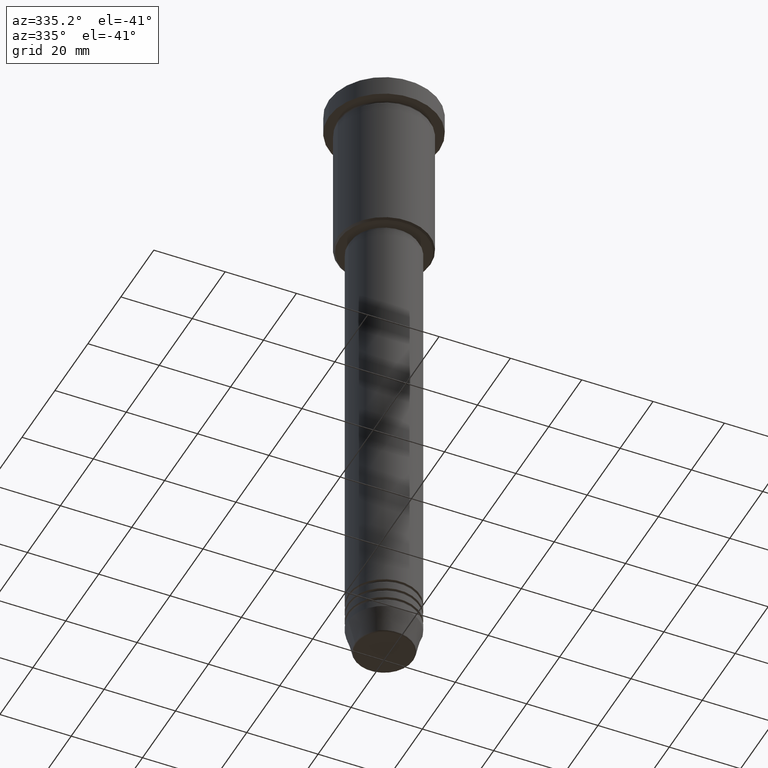
[diagram: clean part render]
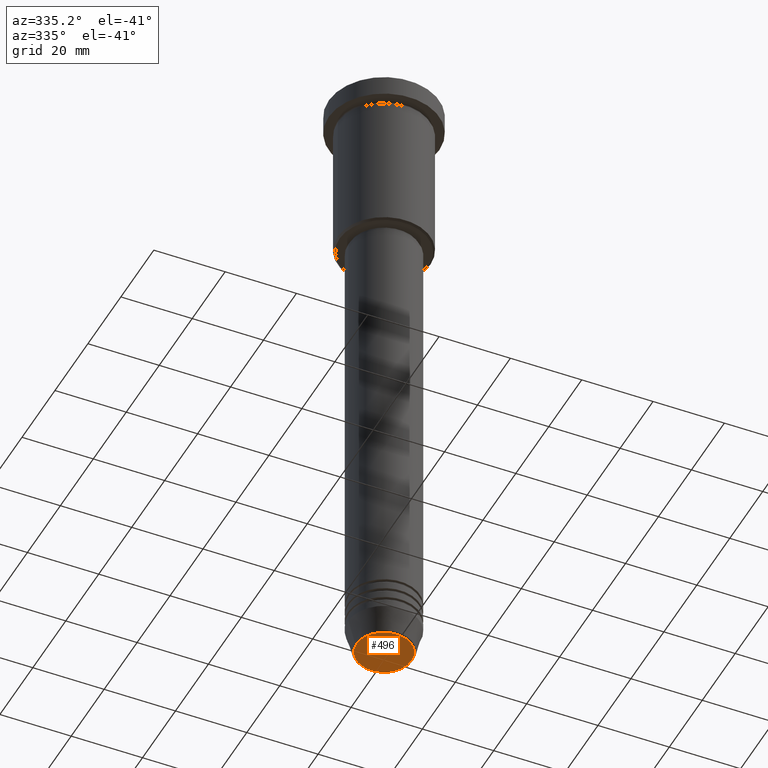
[diagram: same view with one face highlighted and labeled with its STEP entity id]
A machine part, auxiliary view. The second image highlights one B-rep face of the part: STEP entity #496.
In plain terms, the highlighted planar face has unit normal (0, -0, 1).
Its self-contained STEP definition (entity closure, byte-faithful):
#9 = CARTESIAN_POINT ( 'NONE',  ( 0.000000000000000000, 0.000000000000000000, -181.0000000000000000 ) ) ;
#23 = DIRECTION ( 'NONE',  ( 0.000000000000000000, 0.000000000000000000, -1.000000000000000000 ) ) ;
#111 = PLANE ( 'NONE',  #428 ) ;
#114 = VERTEX_POINT ( 'NONE', #1145 ) ;
#178 = DIRECTION ( 'NONE',  ( 1.000000000000000000, 0.000000000000000000, 0.000000000000000000 ) ) ;
#207 = DIRECTION ( 'NONE',  ( 0.000000000000000000, 0.000000000000000000, -1.000000000000000000 ) ) ;
#350 = CARTESIAN_POINT ( 'NONE',  ( -7.740692158992664496, 9.775343368540048996E-16, -181.0000000000000000 ) ) ;
#428 = AXIS2_PLACEMENT_3D ( 'NONE', #9, #991, #178 ) ;
#494 = AXIS2_PLACEMENT_3D ( 'NONE', #658, #23, #847 ) ;
#496 = ADVANCED_FACE ( 'NONE', ( #1089 ), #111, .F. ) ;
#520 = EDGE_CURVE ( 'NONE', #114, #1143, #761, .T. ) ;
#554 = ORIENTED_EDGE ( 'NONE', *, *, #520, .T. ) ;
#658 = CARTESIAN_POINT ( 'NONE',  ( 0.000000000000000000, 0.000000000000000000, -181.0000000000000000 ) ) ;
#677 = DIRECTION ( 'NONE',  ( 1.000000000000000000, 0.000000000000000000, 0.000000000000000000 ) ) ;
#702 = CIRCLE ( 'NONE', #494, 7.740692158992664496 ) ;
#761 = CIRCLE ( 'NONE', #777, 7.740692158992664496 ) ;
#777 = AXIS2_PLACEMENT_3D ( 'NONE', #1126, #207, #677 ) ;
#847 = DIRECTION ( 'NONE',  ( 1.000000000000000000, 0.000000000000000000, 0.000000000000000000 ) ) ;
#991 = DIRECTION ( 'NONE',  ( 0.000000000000000000, -0.000000000000000000, 1.000000000000000000 ) ) ;
#1000 = ORIENTED_EDGE ( 'NONE', *, *, #1168, .T. ) ;
#1089 = FACE_OUTER_BOUND ( 'NONE', #1160, .T. ) ;
#1126 = CARTESIAN_POINT ( 'NONE',  ( 0.000000000000000000, 0.000000000000000000, -181.0000000000000000 ) ) ;
#1143 = VERTEX_POINT ( 'NONE', #350 ) ;
#1145 = CARTESIAN_POINT ( 'NONE',  ( 7.740692158992664496, 0.000000000000000000, -181.0000000000000000 ) ) ;
#1160 = EDGE_LOOP ( 'NONE', ( #554, #1000 ) ) ;
#1168 = EDGE_CURVE ( 'NONE', #1143, #114, #702, .T. ) ;